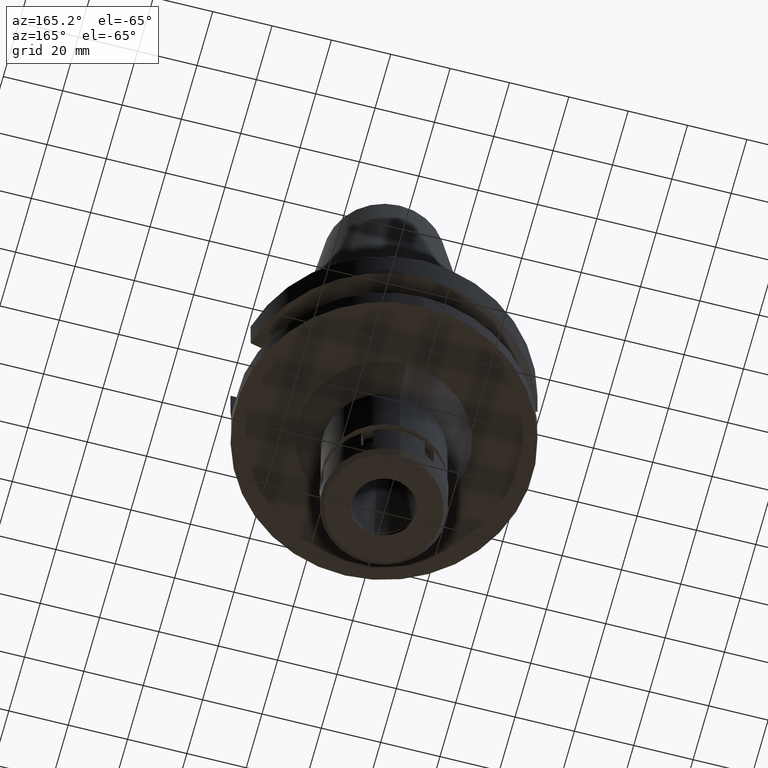
[diagram: clean part render]
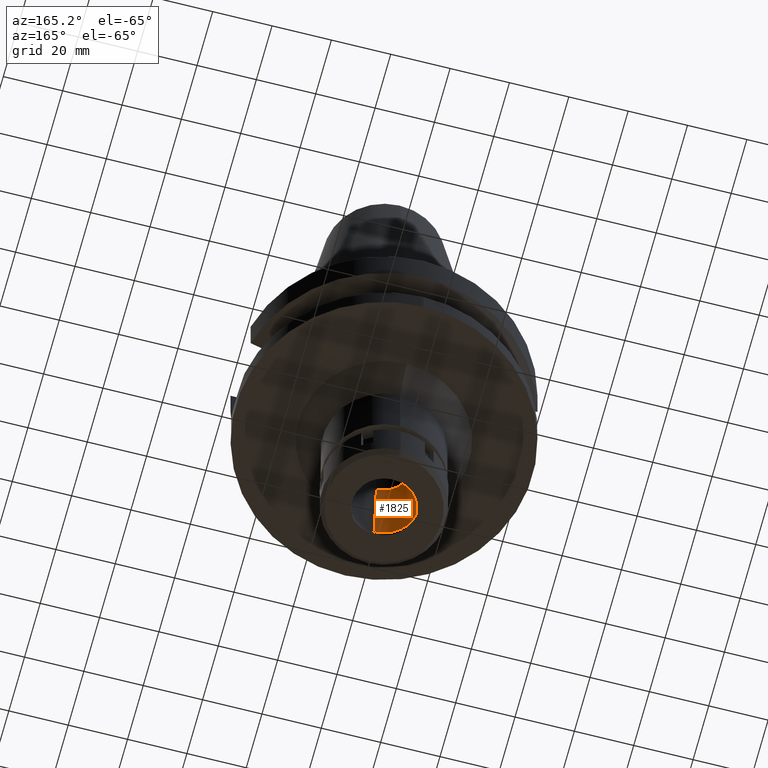
[diagram: same view with one face highlighted and labeled with its STEP entity id]
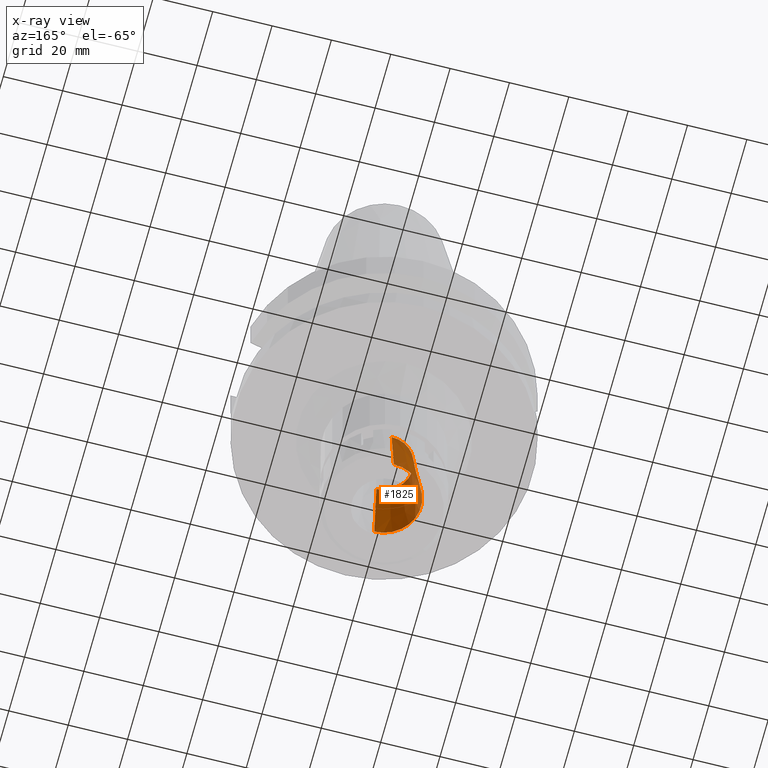
[diagram: x-ray of the same camera — body ghosted, the highlighted face saturated]
A machine part, auxiliary view. The second image highlights one B-rep face of the part: STEP entity #1825.
The next image is the same camera in x-ray: the body ghosted, the highlighted face saturated — about 8% of this face is hidden behind the body in this view.
In plain terms, the highlighted conical surface has half-angle 6 deg.
Its self-contained STEP definition (entity closure, byte-faithful):
#131 = EDGE_CURVE ( 'NONE', #1988, #1335, #3472, .T. ) ;
#229 = CARTESIAN_POINT ( 'NONE',  ( 0.0000000000000000000, 0.0000000000000000000, -82.00000000000000000 ) ) ;
#285 = AXIS2_PLACEMENT_3D ( 'NONE', #2480, #2775, #848 ) ;
#508 = CARTESIAN_POINT ( 'NONE',  ( 0.0000000000000000000, 9.662185647822997936, -55.00000000000000000 ) ) ;
#537 = DIRECTION ( 'NONE',  ( 0.0000000000000000000, -1.000000000000000000, 0.0000000000000000000 ) ) ;
#667 = LINE ( 'NONE', #2319, #982 ) ;
#801 = CARTESIAN_POINT ( 'NONE',  ( 0.0000000000000000000, 12.50000000000000000, -82.00000000000000000 ) ) ;
#848 = DIRECTION ( 'NONE',  ( 0.0000000000000000000, 1.000000000000000000, 0.0000000000000000000 ) ) ;
#940 = DIRECTION ( 'NONE',  ( 0.0000000000000000000, -0.1045284632676965891, 0.9945218953682687379 ) ) ;
#944 = LINE ( 'NONE', #1165, #2166 ) ;
#982 = VECTOR ( 'NONE', #940, 1000.000000000000227 ) ;
#1009 = VERTEX_POINT ( 'NONE', #508 ) ;
#1018 = EDGE_CURVE ( 'NONE', #1988, #2250, #944, .T. ) ;
#1165 = CARTESIAN_POINT ( 'NONE',  ( 0.0000000000000000000, -12.50000000000000000, -82.00000000000000000 ) ) ;
#1335 = VERTEX_POINT ( 'NONE', #801 ) ;
#1476 = AXIS2_PLACEMENT_3D ( 'NONE', #229, #2452, #3234 ) ;
#1691 = DIRECTION ( 'NONE',  ( 0.0000000000000000000, 0.0000000000000000000, -1.000000000000000000 ) ) ;
#1825 = ADVANCED_FACE ( 'NONE', ( #2003 ), #2108, .F. ) ;
#1988 = VERTEX_POINT ( 'NONE', #3315 ) ;
#2003 = FACE_OUTER_BOUND ( 'NONE', #3216, .T. ) ;
#2108 = CONICAL_SURFACE ( 'NONE', #2162, 11.08109282390999972, 0.1047197551196402399 ) ;
#2162 = AXIS2_PLACEMENT_3D ( 'NONE', #3351, #1691, #537 ) ;
#2166 = VECTOR ( 'NONE', #2877, 1000.000000000000227 ) ;
#2195 = EDGE_CURVE ( 'NONE', #1335, #1009, #667, .T. ) ;
#2250 = VERTEX_POINT ( 'NONE', #2550 ) ;
#2319 = CARTESIAN_POINT ( 'NONE',  ( 0.0000000000000000000, 12.50000000000000000, -82.00000000000000000 ) ) ;
#2452 = DIRECTION ( 'NONE',  ( 0.0000000000000000000, 0.0000000000000000000, -1.000000000000000000 ) ) ;
#2480 = CARTESIAN_POINT ( 'NONE',  ( 0.0000000000000000000, 0.0000000000000000000, -55.00000000000000000 ) ) ;
#2533 = ORIENTED_EDGE ( 'NONE', *, *, #3474, .T. ) ;
#2550 = CARTESIAN_POINT ( 'NONE',  ( 0.0000000000000000000, -9.662185647822997936, -55.00000000000000000 ) ) ;
#2659 = CIRCLE ( 'NONE', #285, 9.662185647822997936 ) ;
#2775 = DIRECTION ( 'NONE',  ( 0.0000000000000000000, 0.0000000000000000000, 1.000000000000000000 ) ) ;
#2877 = DIRECTION ( 'NONE',  ( 0.0000000000000000000, 0.1045284632676965891, 0.9945218953682687379 ) ) ;
#2897 = ORIENTED_EDGE ( 'NONE', *, *, #1018, .F. ) ;
#3216 = EDGE_LOOP ( 'NONE', ( #2533, #2897, #3302, #3548 ) ) ;
#3234 = DIRECTION ( 'NONE',  ( 0.0000000000000000000, -1.000000000000000000, 0.0000000000000000000 ) ) ;
#3302 = ORIENTED_EDGE ( 'NONE', *, *, #131, .T. ) ;
#3315 = CARTESIAN_POINT ( 'NONE',  ( 0.0000000000000000000, -12.50000000000000000, -82.00000000000000000 ) ) ;
#3351 = CARTESIAN_POINT ( 'NONE',  ( 0.0000000000000000000, 0.0000000000000000000, -68.50000000000000000 ) ) ;
#3472 = CIRCLE ( 'NONE', #1476, 12.50000000000000000 ) ;
#3474 = EDGE_CURVE ( 'NONE', #1009, #2250, #2659, .T. ) ;
#3548 = ORIENTED_EDGE ( 'NONE', *, *, #2195, .T. ) ;